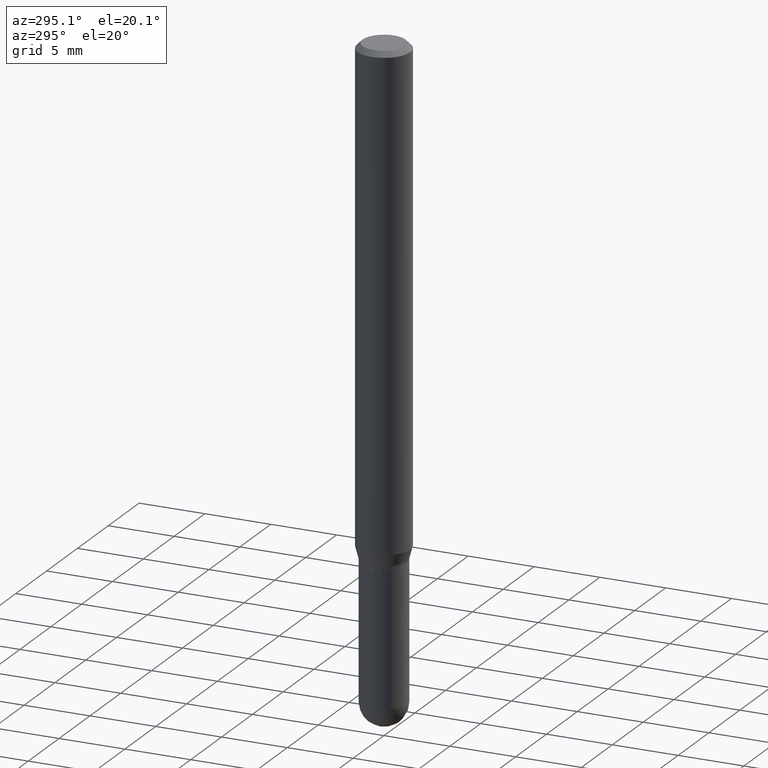
[diagram: clean part render]
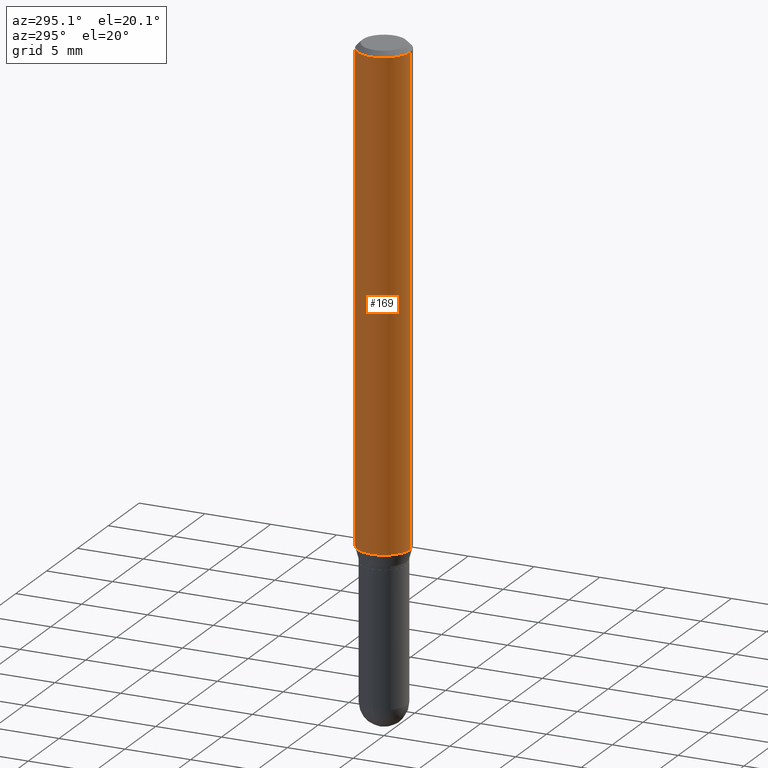
[diagram: same view with one face highlighted and labeled with its STEP entity id]
A machine part, auxiliary view. The second image highlights one B-rep face of the part: STEP entity #169.
In plain terms, the highlighted cylindrical surface (edge-blend (fillet) strip) has radius 2.0002 mm, axis along (-0, 0, 1).
Its self-contained STEP definition (entity closure, byte-faithful):
#3 = DIRECTION ( 'NONE',  ( -2.445433841803367524E-29, 3.491531409827887808E-15, 1.000000000000000000 ) ) ;
#18 = LINE ( 'NONE', #306, #80 ) ;
#32 = EDGE_LOOP ( 'NONE', ( #405, #111, #165, #139 ) ) ;
#35 = VERTEX_POINT ( 'NONE', #483 ) ;
#63 = DIRECTION ( 'NONE',  ( -2.445433841803367243E-29, 3.491531409827887808E-15, 1.000000000000000000 ) ) ;
#80 = VECTOR ( 'NONE', #63, 39.37007874015748143 ) ;
#96 = EDGE_CURVE ( 'NONE', #274, #339, #155, .T. ) ;
#111 = ORIENTED_EDGE ( 'NONE', *, *, #319, .T. ) ;
#128 = CIRCLE ( 'NONE', #475, 0.07874999999999997280 ) ;
#139 = ORIENTED_EDGE ( 'NONE', *, *, #96, .F. ) ;
#155 = CIRCLE ( 'NONE', #442, 0.07875000000000000056 ) ;
#165 = ORIENTED_EDGE ( 'NONE', *, *, #250, .T. ) ;
#169 = ADVANCED_FACE ( 'NONE', ( #252 ), #257, .T. ) ;
#215 = CARTESIAN_POINT ( 'NONE',  ( 0.000000000000000000, 0.000000000000000000, 0.000000000000000000 ) ) ;
#225 = LINE ( 'NONE', #498, #450 ) ;
#230 = AXIS2_PLACEMENT_3D ( 'NONE', #215, #3, #335 ) ;
#250 = EDGE_CURVE ( 'NONE', #351, #339, #18, .T. ) ;
#252 = FACE_OUTER_BOUND ( 'NONE', #32, .T. ) ;
#253 = DIRECTION ( 'NONE',  ( -2.445433841803367524E-29, 3.491531409827887808E-15, 1.000000000000000000 ) ) ;
#257 = CYLINDRICAL_SURFACE ( 'NONE', #230, 0.07874999999999997280 ) ;
#274 = VERTEX_POINT ( 'NONE', #495 ) ;
#306 = CARTESIAN_POINT ( 'NONE',  ( -5.499083108677932471E-16, -0.07874999999999997280, 2.749580985239461215E-16 ) ) ;
#308 = DIRECTION ( 'NONE',  ( -2.445433841803367243E-29, 3.491531409827887808E-15, 1.000000000000000000 ) ) ;
#311 = EDGE_CURVE ( 'NONE', #35, #274, #225, .T. ) ;
#319 = EDGE_CURVE ( 'NONE', #35, #351, #128, .T. ) ;
#335 = DIRECTION ( 'NONE',  ( -6.982962677686265922E-15, -1.000000000000000000, 3.491531409827888596E-15 ) ) ;
#339 = VERTEX_POINT ( 'NONE', #502 ) ;
#351 = VERTEX_POINT ( 'NONE', #385 ) ;
#352 = CARTESIAN_POINT ( 'NONE',  ( 3.544263371364020431E-29, -5.060413687860873345E-15, -1.449339299545445714 ) ) ;
#356 = DIRECTION ( 'NONE',  ( -6.982962677686265922E-15, -1.000000000000000000, 3.469013325287954477E-15 ) ) ;
#372 = CARTESIAN_POINT ( 'NONE',  ( 3.668150762705072200E-31, -5.237297114741861935E-17, -0.01500000000000008618 ) ) ;
#385 = CARTESIAN_POINT ( 'NONE',  ( -5.499083108677578469E-16, -0.07875000000000501044, -1.449339299545445270 ) ) ;
#405 = ORIENTED_EDGE ( 'NONE', *, *, #311, .F. ) ;
#442 = AXIS2_PLACEMENT_3D ( 'NONE', #372, #253, #457 ) ;
#450 = VECTOR ( 'NONE', #308, 39.37007874015748143 ) ;
#457 = DIRECTION ( 'NONE',  ( -6.982962677686264344E-15, -1.000000000000000000, 3.496114991891765576E-15 ) ) ;
#462 = DIRECTION ( 'NONE',  ( -2.445433841803367524E-29, 3.491531409827887808E-15, 1.000000000000000000 ) ) ;
#475 = AXIS2_PLACEMENT_3D ( 'NONE', #352, #462, #356 ) ;
#483 = CARTESIAN_POINT ( 'NONE',  ( 5.595524044111142018E-16, 0.07874999999999494904, -1.449339299545445936 ) ) ;
#495 = CARTESIAN_POINT ( 'NONE',  ( 5.595524044111143991E-16, 0.07874999999999994504, -0.01500000000000036027 ) ) ;
#498 = CARTESIAN_POINT ( 'NONE',  ( 5.595524044110786045E-16, 0.07874999999999997280, -2.749580985239461215E-16 ) ) ;
#502 = CARTESIAN_POINT ( 'NONE',  ( -5.499083108677930499E-16, -0.07875000000000004219, -0.01499999999999981036 ) ) ;